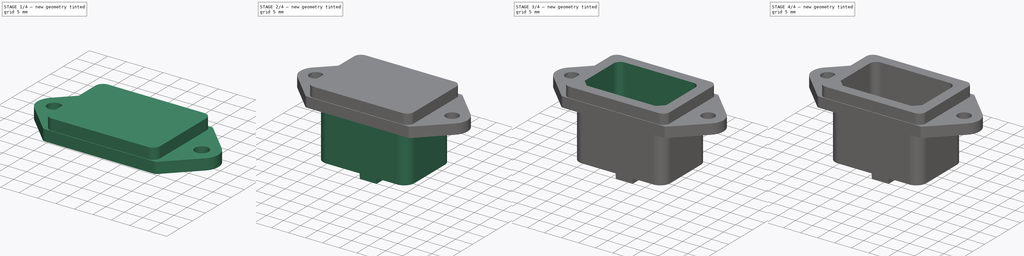
[diagram: build sequence overview — one tinted view per stage of 4, left to right]
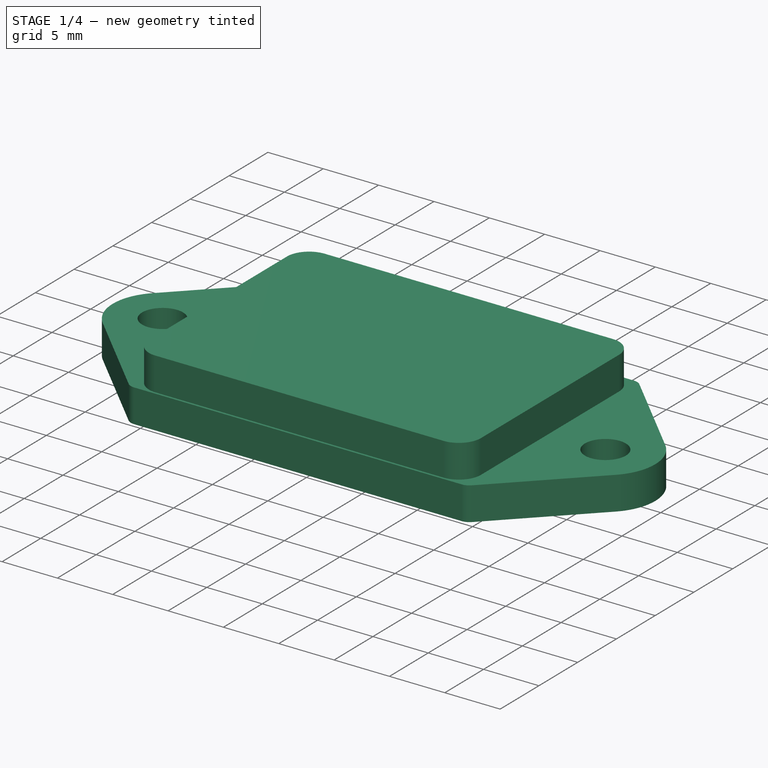
[diagram: stage 1 of 4 — iso view after this stage's code; geometry added in this stage tinted green]
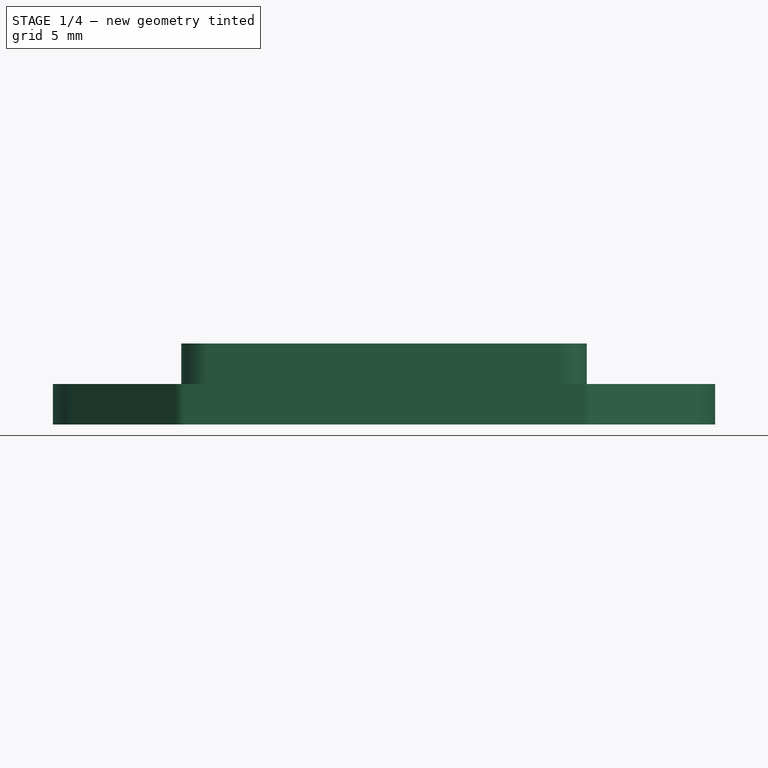
[diagram: stage 1 of 4 — front view after this stage's code; geometry added in this stage tinted green]
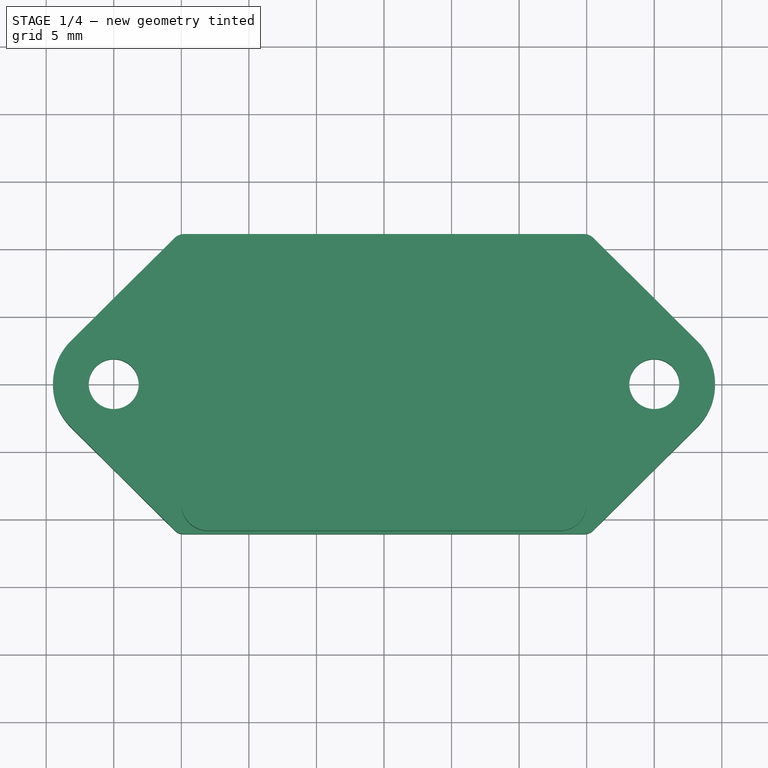
[diagram: stage 1 of 4 — top view after this stage's code; geometry added in this stage tinted green]
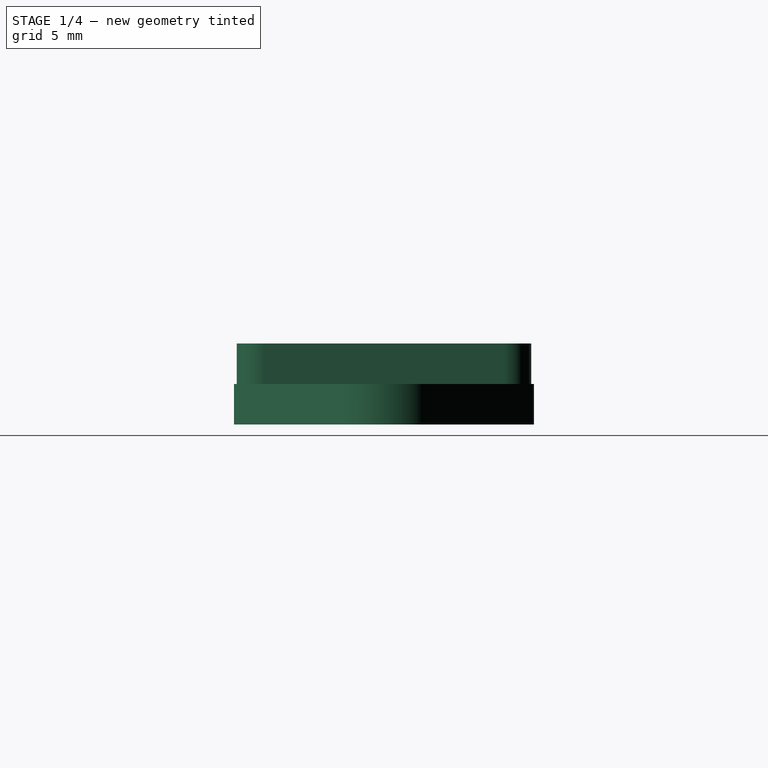
[diagram: stage 1 of 4 — right view after this stage's code; geometry added in this stage tinted green]
FCSTD DOCUMENT  (FreeCAD 0.15R4671 (Git))
Label: Cuerpo
License: All rights reserved
LicenseURL: http://en.wikipedia.org/wiki/All_rights_reserved
objects: Sketcher::SketchObject×7, PartDesign::Pad×5, Part::MultiFuse×4, PartDesign::Pocket×2, Part::MultiCommon×2, Part::Feature×1
note: 28 computed .brp shape members not serialized (recipe doc carries the construction recipe); baked Part::Feature solids carry a one-line shape summary decoded from their .brp

FEATURE [Sketcher::SketchObject] Sketch
  sketch-geometry (8):
    g0: LineSegment StartX=-13 StartY=10.9 StartZ=0 EndX=13 EndY=10.9 EndZ=0
    g1: LineSegment StartX=15 StartY=8.9 StartZ=0 EndX=15 EndY=-8.9 EndZ=0
    g2: LineSegment StartX=13 StartY=-10.9 StartZ=0 EndX=-13 EndY=-10.9 EndZ=0
    g3: LineSegment StartX=-15 StartY=-8.9 StartZ=0 EndX=-15 EndY=8.9 EndZ=0
    g4: ArcOfCircle CenterX=-13 CenterY=8.9 CenterZ=0 NormalX=0 NormalY=0 NormalZ=1 Radius=2 StartAngle=1.5708 EndAngle=3.14159
    g5: ArcOfCircle CenterX=13 CenterY=8.9 CenterZ=0 NormalX=0 NormalY=0 NormalZ=1 Radius=2 StartAngle=0 EndAngle=1.5708
    g6: ArcOfCircle CenterX=13 CenterY=-8.9 CenterZ=0 NormalX=0 NormalY=0 NormalZ=1 Radius=2 StartAngle=4.71239 EndAngle=6.28319
    g7: ArcOfCircle CenterX=-13 CenterY=-8.9 CenterZ=0 NormalX=0 NormalY=0 NormalZ=1 Radius=2 StartAngle=3.14159 EndAngle=4.71239
  constraints (20):
    c: Horizontal(g0)
    c: Horizontal(g2)
    c: Vertical(g1)
    c: Vertical(g3)
    c: Tangent(g3,g4) = 1.5708
    c: Tangent(g0,g4) = 1.5708
    c: Tangent(g0,g5) = 1.5708
    c: Tangent(g1,g5) = 1.5708
    c: Tangent(g1,g6) = 1.5708
    c: Tangent(g2,g6) = 1.5708
    c: Tangent(g2,g7) = 1.5708
    c: Tangent(g3,g7) = 1.5708
    c: Equal(g4,g5)
    c: Equal(g5,g6)
    c: Equal(g6,g7)
    c: Symmetric(g4,g5,g-2)
    c: Symmetric(g5,g6,g-1)
    c: DistanceX(g3,g1) = 30
    c: Radius(g7) = 2
    c: DistanceY(g0,g2) = -21.8
FEATURE [PartDesign::Pad] Pad
  Length = 3
  Length2 = 100
  Reversed = true
  Sketch = -> Sketch
  Type = 0
FEATURE [Sketcher::SketchObject] Sketch001
  Placement = pos=(0,0,-3) rot=(1,0,0;3.14159rad)
  Support = -> Pad [Face10]
  sketch-geometry (14):
    g0: LineSegment StartX=-23.1707 StartY=3.19326 StartZ=0 EndX=-15.5 EndY=10.8096 EndZ=0
    g1: LineSegment StartX=-14.7954 StartY=11.1 StartZ=0 EndX=14.7954 EndY=11.1 EndZ=0
    g2: LineSegment StartX=15.5 StartY=10.8096 StartZ=0 EndX=23.1707 EndY=3.19326 EndZ=0
    g3: LineSegment StartX=23.1707 StartY=-3.19326 StartZ=0 EndX=15.5 EndY=-10.8096 EndZ=0
    g4: LineSegment StartX=14.7954 StartY=-11.1 StartZ=0 EndX=-14.7954 EndY=-11.1 EndZ=0
    g5: LineSegment StartX=-15.5 StartY=-10.8096 StartZ=0 EndX=-23.1707 EndY=-3.19326 EndZ=0
    g6: ArcOfCircle CenterX=-20 CenterY=0 CenterZ=0 NormalX=0 NormalY=0 NormalZ=1 Radius=4.5 StartAngle=2.35264 EndAngle=3.93054
    g7: ArcOfCircle CenterX=20 CenterY=0 CenterZ=0 NormalX=0 NormalY=0 NormalZ=1 Radius=4.5 StartAngle=5.49423 EndAngle=7.07214
    g8: ArcOfCircle CenterX=-14.7954 CenterY=10.1 CenterZ=0 NormalX=0 NormalY=0 NormalZ=1 Radius=1 StartAngle=1.5708 EndAngle=2.35264
    g9: ArcOfCircle CenterX=14.7954 CenterY=10.1 CenterZ=0 NormalX=0 NormalY=0 NormalZ=1 Radius=1 StartAngle=0.788951 EndAngle=1.5708
    g10: ArcOfCircle CenterX=14.7954 CenterY=-10.1 CenterZ=0 NormalX=0 NormalY=0 NormalZ=1 Radius=1 StartAngle=4.71239 EndAngle=5.49423
    g11: ArcOfCircle CenterX=-14.7954 CenterY=-10.1 CenterZ=0 NormalX=0 NormalY=0 NormalZ=1 Radius=1 StartAngle=3.93054 EndAngle=4.71239
    g12: Circle CenterX=-20 CenterY=0 CenterZ=0 NormalX=0 NormalY=0 NormalZ=1 Radius=1.85
    g13: Circle CenterX=20 CenterY=0 CenterZ=0 NormalX=0 NormalY=0 NormalZ=1 Radius=1.85
  constraints (33):
    c: Horizontal(g1)
    c: Horizontal(g4)
    c: Tangent(g0,g6) = 1.5708
    c: Tangent(g5,g6) = 1.5708
    c: Tangent(g2,g7) = 1.5708
    c: Tangent(g3,g7) = 1.5708
    c: PointOnObject(g6,g-1)
    c: PointOnObject(g7,g-1)
    c: Symmetric(g6,g7,g-2)
    c: Equal(g6,g7)
    c: Radius(g6) = 4.5
    c: Tangent(g0,g8) = 1.5708
    c: Tangent(g1,g8) = 1.5708
    c: Tangent(g1,g9) = 1.5708
    c: Tangent(g2,g9) = 1.5708
    c: Tangent(g3,g10) = 1.5708
    c: Tangent(g4,g10) = 1.5708
    c: Tangent(g4,g11) = 1.5708
    c: Tangent(g5,g11) = 1.5708
    c: Equal(g8,g9)
    c: Equal(g9,g10)
    c: Equal(g10,g11)
    c: Symmetric(g8,g9,g-2)
    c: Symmetric(g9,g10,g-1)
    c: Radius(g8) = 1
    c: DistanceX(g0,g2) = 31
    c: DistanceY(g1,g4) = -22.2
    c: DistanceX(g6,g7) = 40
    c: Equal(g1,g4)
    c: Coincident(g12,g6)
    c: Coincident(g13,g7)
    c: Equal(g12,g13)
    c: Radius(g13) = 1.85
FEATURE [PartDesign::Pad] Pad001
  Length = 3
  Length2 = 100
  Sketch = -> Sketch001
  Type = 0
FEATURE [Part::MultiFuse] Fusion
  Shapes = -> [Pad001,Pad]
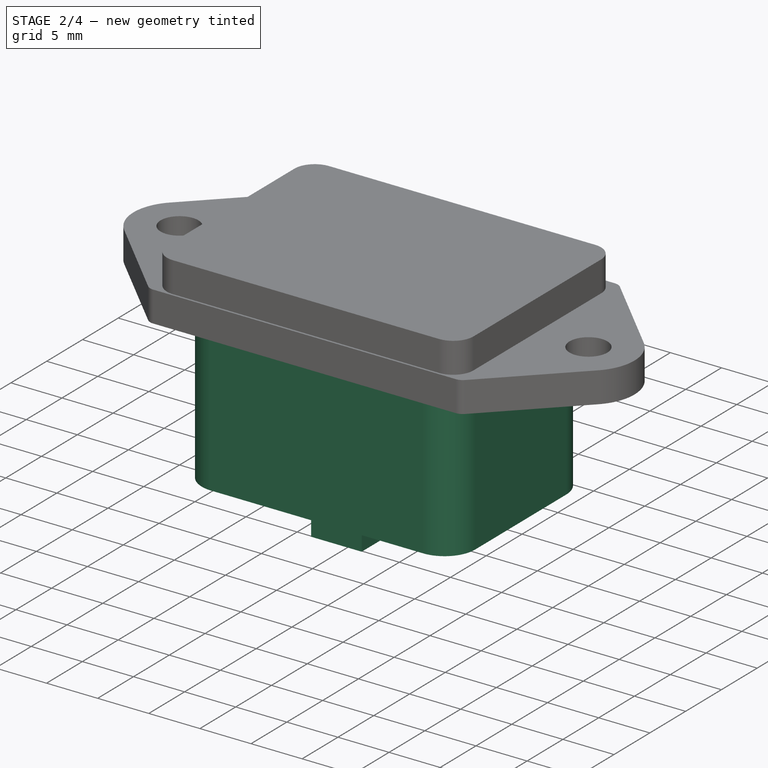
[diagram: stage 2 of 4 — iso view after this stage's code; geometry added in this stage tinted green]
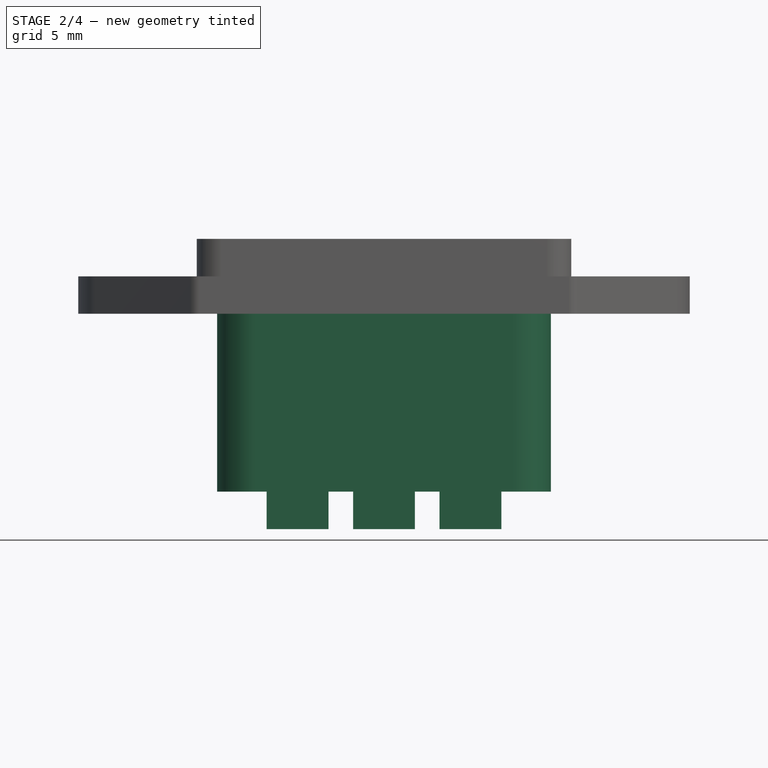
[diagram: stage 2 of 4 — front view after this stage's code; geometry added in this stage tinted green]
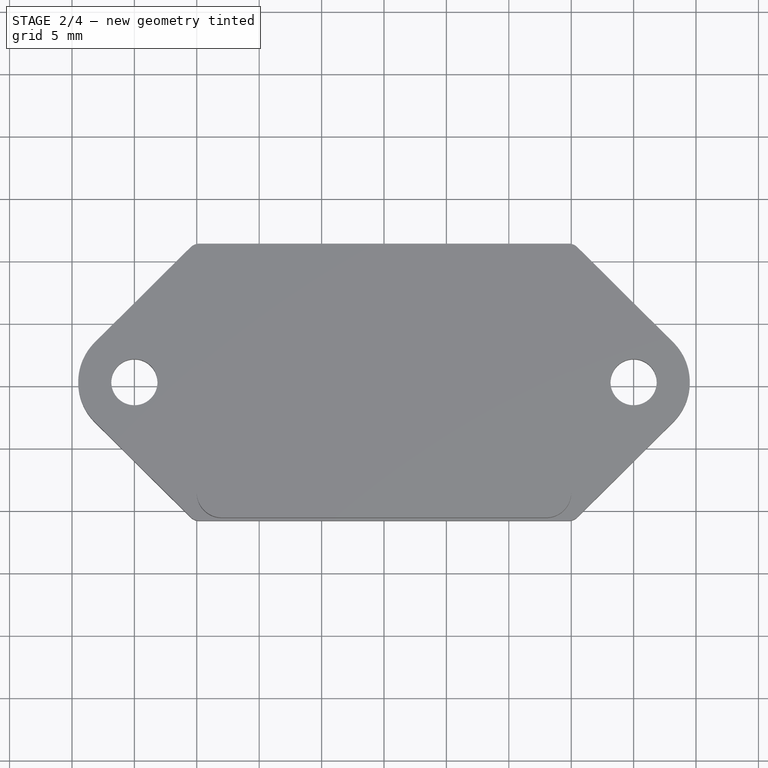
[diagram: stage 2 of 4 — top view after this stage's code; geometry added in this stage tinted green]
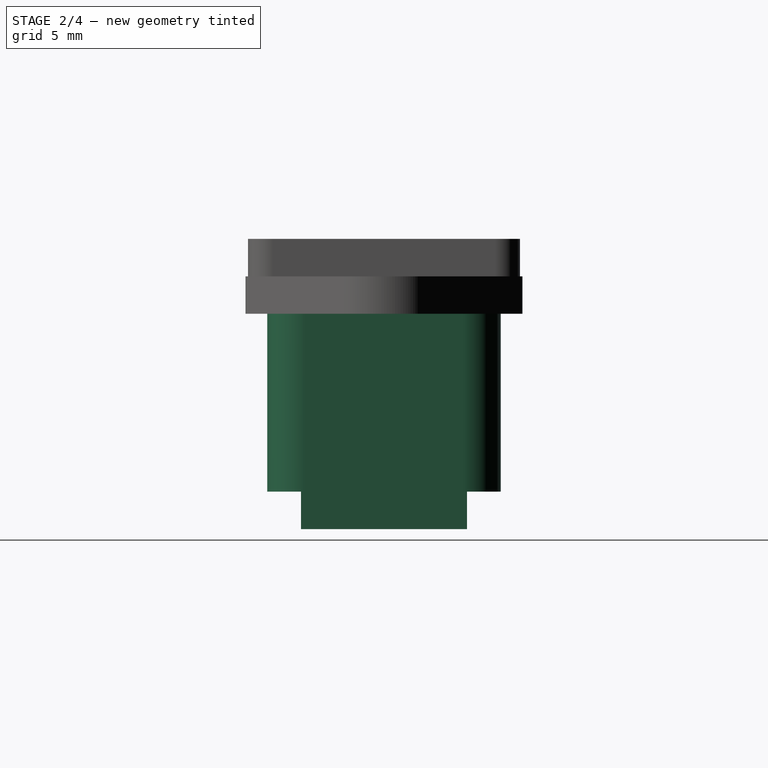
[diagram: stage 2 of 4 — right view after this stage's code; geometry added in this stage tinted green]
FEATURE [Sketcher::SketchObject] Sketch002
  Placement = pos=(0,0,-6) rot=(1,0,0;3.14159rad)
  Support = -> Fusion [Face5]
  sketch-geometry (8):
    g0: LineSegment StartX=-10.375 StartY=9.35 StartZ=0 EndX=10.375 EndY=9.35 EndZ=0
    g1: LineSegment StartX=13.375 StartY=6.35 StartZ=0 EndX=13.375 EndY=-6.35 EndZ=0
    g2: LineSegment StartX=10.375 StartY=-9.35 StartZ=0 EndX=-10.375 EndY=-9.35 EndZ=0
    g3: LineSegment StartX=-13.375 StartY=-6.35 StartZ=0 EndX=-13.375 EndY=6.35 EndZ=0
    g4: ArcOfCircle CenterX=-10.375 CenterY=6.35 CenterZ=0 NormalX=0 NormalY=0 NormalZ=1 Radius=3 StartAngle=1.5708 EndAngle=3.14159
    g5: ArcOfCircle CenterX=10.375 CenterY=6.35 CenterZ=0 NormalX=0 NormalY=0 NormalZ=1 Radius=3 StartAngle=0 EndAngle=1.5708
    g6: ArcOfCircle CenterX=10.375 CenterY=-6.35 CenterZ=0 NormalX=0 NormalY=0 NormalZ=1 Radius=3 StartAngle=4.71239 EndAngle=6.28319
    g7: ArcOfCircle CenterX=-10.375 CenterY=-6.35 CenterZ=0 NormalX=0 NormalY=0 NormalZ=1 Radius=3 StartAngle=3.14159 EndAngle=4.71239
  constraints (20):
    c: Horizontal(g0)
    c: Horizontal(g2)
    c: Vertical(g1)
    c: Vertical(g3)
    c: Tangent(g3,g4) = 1.5708
    c: Tangent(g0,g4) = 1.5708
    c: Tangent(g0,g5) = 1.5708
    c: Tangent(g1,g5) = 1.5708
    c: Tangent(g1,g6) = 1.5708
    c: Tangent(g2,g6) = 1.5708
    c: Tangent(g2,g7) = 1.5708
    c: Tangent(g3,g7) = 1.5708
    c: Radius(g4) = 3
    c: Equal(g4,g5)
    c: Equal(g5,g6)
    c: Equal(g6,g7)
    c: Symmetric(g4,g5,g-2)
    c: DistanceX(g3,g1) = 26.75
    c: Symmetric(g5,g6,g-1)
    c: DistanceY(g0,g2) = -18.7
FEATURE [PartDesign::Pad] Pad002
  Length = 14.25
  Length2 = 100
  Sketch = -> Sketch002
  Type = 0
FEATURE [Part::MultiFuse] Fusion001
  Shapes = -> [Pad002,Fusion]
FEATURE [Sketcher::SketchObject] Sketch003
  Placement = pos=(0,0,-20.25) rot=(1,0,0;3.14159rad)
  Support = -> Fusion001 [Face1]
  sketch-geometry (12):
    g0: LineSegment StartX=-2.475 StartY=6.65 StartZ=0 EndX=2.475 EndY=6.65 EndZ=0
    g1: LineSegment StartX=2.475 StartY=6.65 StartZ=0 EndX=2.475 EndY=0 EndZ=0
    g2: LineSegment StartX=2.475 StartY=0 StartZ=0 EndX=-2.475 EndY=0 EndZ=0
    g3: LineSegment StartX=-2.475 StartY=0 StartZ=0 EndX=-2.475 EndY=6.65 EndZ=0
    g4: LineSegment StartX=-9.4 StartY=0 StartZ=0 EndX=-4.45 EndY=0 EndZ=0
    g5: LineSegment StartX=-4.45 StartY=0 StartZ=0 EndX=-4.45 EndY=-6.65 EndZ=0
    g6: LineSegment StartX=-4.45 StartY=-6.65 StartZ=0 EndX=-9.4 EndY=-6.65 EndZ=0
    g7: LineSegment StartX=-9.4 StartY=-6.65 StartZ=0 EndX=-9.4 EndY=0 EndZ=0
    g8: LineSegment StartX=4.45 StartY=0 StartZ=0 EndX=9.4 EndY=0 EndZ=0
    g9: LineSegment StartX=9.4 StartY=0 StartZ=0 EndX=9.4 EndY=-6.65 EndZ=0
    g10: LineSegment StartX=9.4 StartY=-6.65 StartZ=0 EndX=4.45 EndY=-6.65 EndZ=0
    g11: LineSegment StartX=4.45 StartY=-6.65 StartZ=0 EndX=4.45 EndY=0 EndZ=0
  constraints (36):
    c: Coincident(g0,g1)
    c: Coincident(g1,g2)
    c: Coincident(g2,g3)
    c: Coincident(g3,g0)
    c: Horizontal(g0)
    c: Horizontal(g2)
    c: Vertical(g1)
    c: Vertical(g3)
    c: Coincident(g4,g5)
    c: Coincident(g5,g6)
    c: Coincident(g6,g7)
    c: Coincident(g7,g4)
    c: Horizontal(g4)
    c: Horizontal(g6)
    c: Vertical(g5)
    c: Vertical(g7)
    c: PointOnObject(g4,g-1)
    c: Coincident(g8,g9)
    c: Coincident(g9,g10)
    c: Coincident(g10,g11)
    c: Coincident(g11,g8)
    c: Horizontal(g8)
    c: Horizontal(g10)
    c: Vertical(g9)
    c: Vertical(g11)
    c: PointOnObject(g8,g-1)
    c: Symmetric(g0,g0,g-2)
    c: Equal(g0,g4)
    c: Equal(g4,g8)
    c: Equal(g1,g5)
    c: Equal(g5,g9)
    c: DistanceX(g0) = 4.95
    c: PointOnObject(g2,g-1)
    c: DistanceY(g1) = -6.65
    c: Symmetric(g5,g10,g-2)
    c: DistanceX(g9,g6) = -18.8
FEATURE [PartDesign::Pad] Pad003
  Length = 3
  Length2 = 100
  Sketch = -> Sketch003
  Type = 0
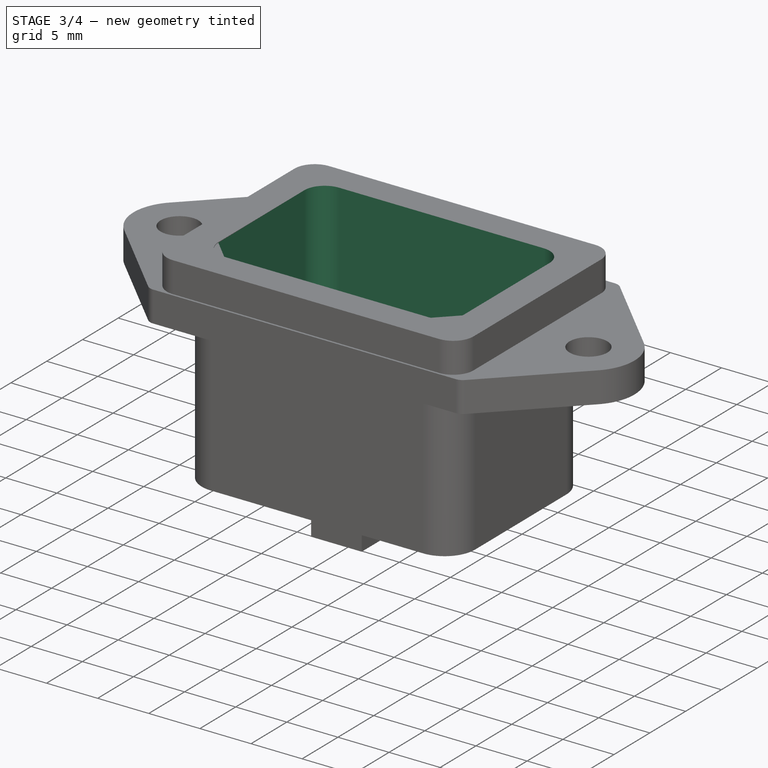
[diagram: stage 3 of 4 — iso view after this stage's code; geometry added in this stage tinted green]
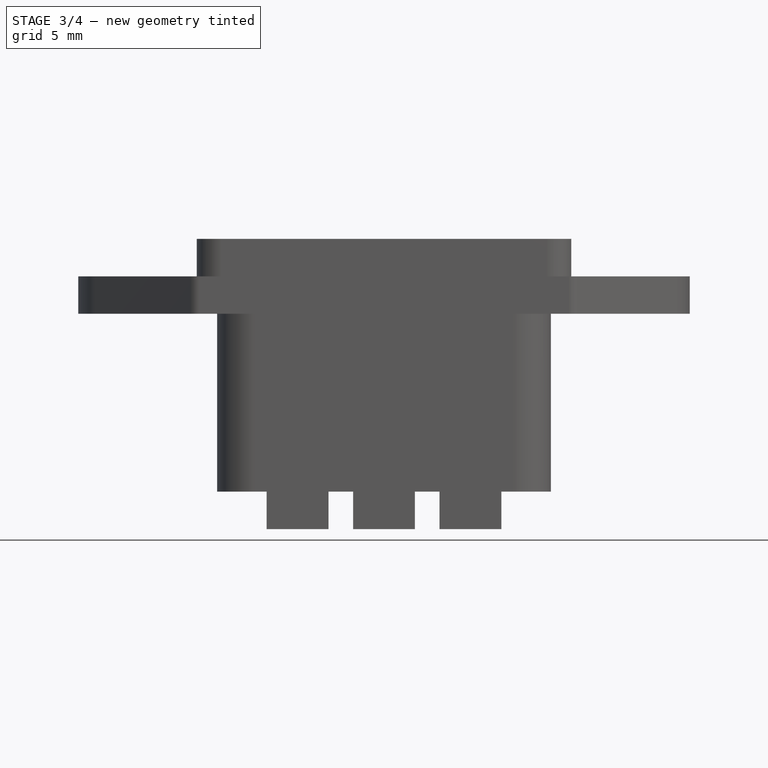
[diagram: stage 3 of 4 — front view after this stage's code; geometry added in this stage tinted green]
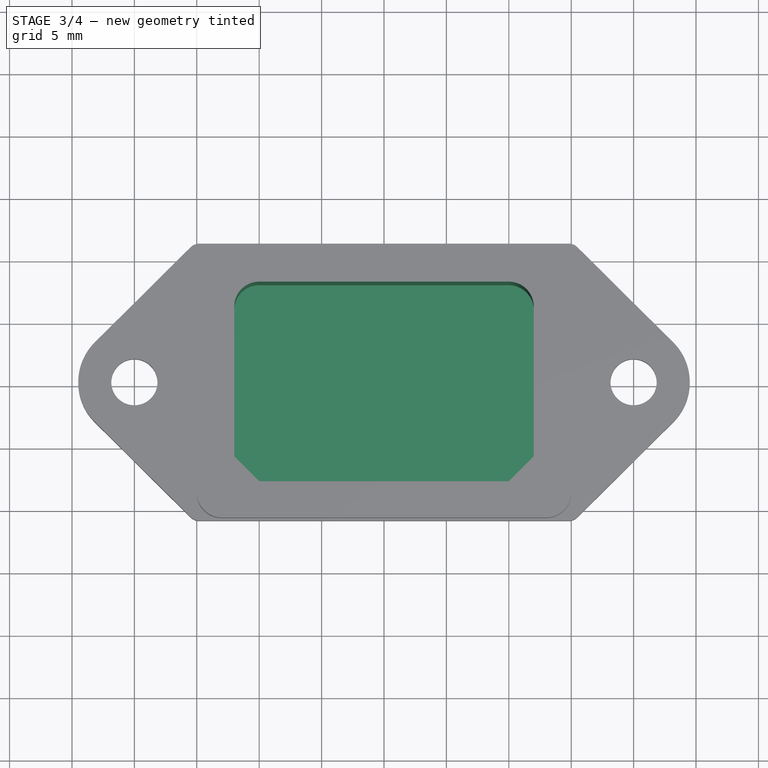
[diagram: stage 3 of 4 — top view after this stage's code; geometry added in this stage tinted green]
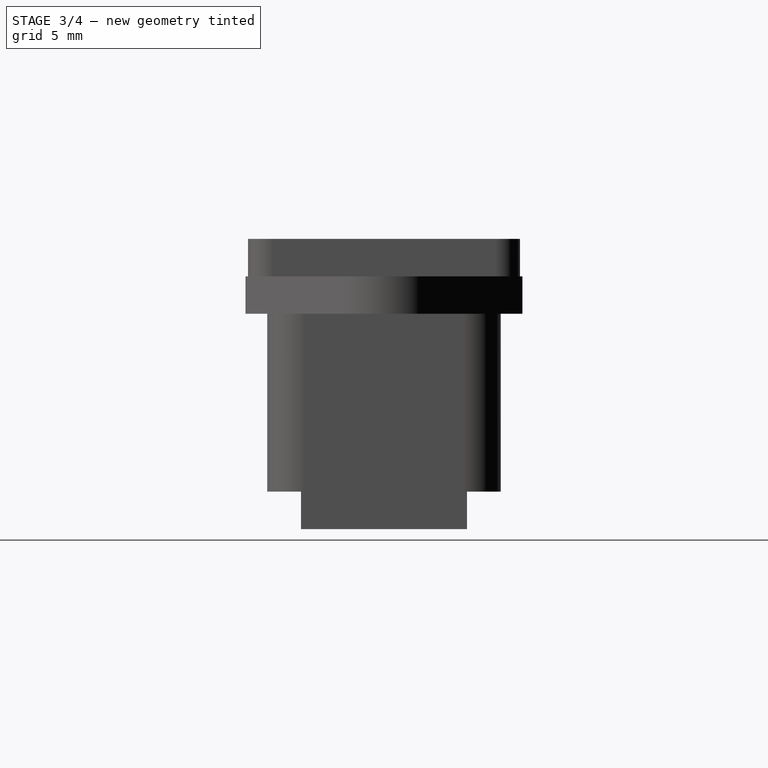
[diagram: stage 3 of 4 — right view after this stage's code; geometry added in this stage tinted green]
FEATURE [Part::MultiFuse] Fusion002
  Shapes = -> [Pad003,Fusion001]
FEATURE [Sketcher::SketchObject] Sketch004
  Support = -> Fusion002 [Face49]
  sketch-geometry (8):
    g0: LineSegment StartX=-10 StartY=8 StartZ=0 EndX=10 EndY=8 EndZ=0
    g1: LineSegment StartX=12 StartY=6 StartZ=0 EndX=12 EndY=-6 EndZ=0
    g2: LineSegment StartX=10 StartY=-8 StartZ=0 EndX=-10 EndY=-8 EndZ=0
    g3: LineSegment StartX=-12 StartY=-6 StartZ=0 EndX=-12 EndY=6 EndZ=0
    g4: ArcOfCircle CenterX=-10 CenterY=6 CenterZ=0 NormalX=0 NormalY=0 NormalZ=1 Radius=2 StartAngle=1.5708 EndAngle=3.14159
    g5: ArcOfCircle CenterX=10 CenterY=6 CenterZ=0 NormalX=0 NormalY=0 NormalZ=1 Radius=2 StartAngle=0 EndAngle=1.5708
    g6: ArcOfCircle CenterX=10 CenterY=-6 CenterZ=0 NormalX=0 NormalY=0 NormalZ=1 Radius=2 StartAngle=4.71239 EndAngle=6.28319
    g7: ArcOfCircle CenterX=-10 CenterY=-6 CenterZ=0 NormalX=0 NormalY=0 NormalZ=1 Radius=2 StartAngle=3.14159 EndAngle=4.71239
  constraints (20):
    c: Horizontal(g0)
    c: Horizontal(g2)
    c: Vertical(g1)
    c: Vertical(g3)
    c: Tangent(g3,g4) = 1.5708
    c: Tangent(g0,g4) = 1.5708
    c: Tangent(g0,g5) = 1.5708
    c: Tangent(g1,g5) = 1.5708
    c: Tangent(g1,g6) = 1.5708
    c: Tangent(g2,g6) = 1.5708
    c: Tangent(g2,g7) = 1.5708
    c: Tangent(g3,g7) = 1.5708
    c: Equal(g4,g5)
    c: Equal(g5,g6)
    c: Equal(g6,g7)
    c: Symmetric(g4,g5,g-2)
    c: Symmetric(g5,g6,g-1)
    c: Radius(g7) = 2
    c: DistanceX(g3,g1) = 24
    c: DistanceY(g0,g2) = -16
FEATURE [PartDesign::Pocket] Pocket
  Length = 16.45
  Sketch = -> Sketch004
  Type = 0
FEATURE [Part::MultiCommon] Common
  Shapes = -> [Pocket,Fusion002]
FEATURE [Sketcher::SketchObject] Sketch005
  ExternalGeometry = -> [Common]
  Placement = pos=(0,0,-16.45) rot=(0,0,1;0rad)
  Support = -> Common [Face58]
  sketch-geometry (4):
    g0: ArcOfCircle CenterX=-10 CenterY=-6 CenterZ=0 NormalX=0 NormalY=0 NormalZ=1 Radius=2 StartAngle=3.14159 EndAngle=4.71239
    g1: LineSegment StartX=-10 StartY=-8 StartZ=0 EndX=-12 EndY=-6 EndZ=0
    g2: ArcOfCircle CenterX=10 CenterY=-6 CenterZ=0 NormalX=0 NormalY=0 NormalZ=1 Radius=2 StartAngle=4.71239 EndAngle=6.28319
    g3: LineSegment StartX=10 StartY=-8 StartZ=0 EndX=12 EndY=-6 EndZ=0
  constraints (10):
    c: Coincident(g0,g-3)
    c: Coincident(g0,g-3)
    c: Coincident(g0,g-3)
    c: Coincident(g1,g0)
    c: Coincident(g1,g0)
    c: Coincident(g2,g-4)
    c: Coincident(g2,g-4)
    c: Coincident(g2,g-4)
    c: Coincident(g3,g2)
    c: Coincident(g3,g2)
FEATURE [PartDesign::Pad] Pad004
  Length = 16.4
  Length2 = 100
  Sketch = -> Sketch005
  Type = 0
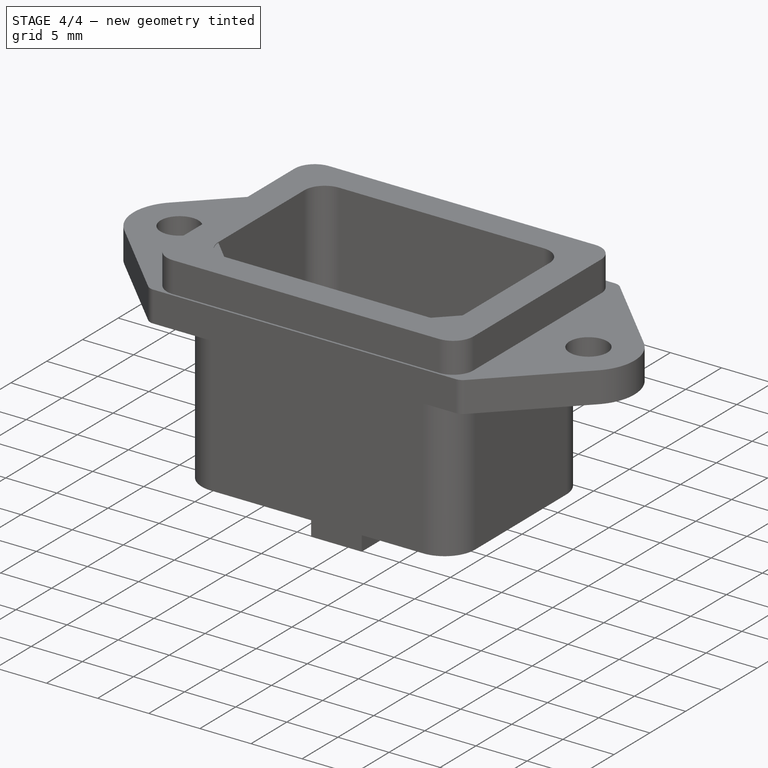
[diagram: stage 4 of 4 — iso view after this stage's code; geometry added in this stage tinted green]
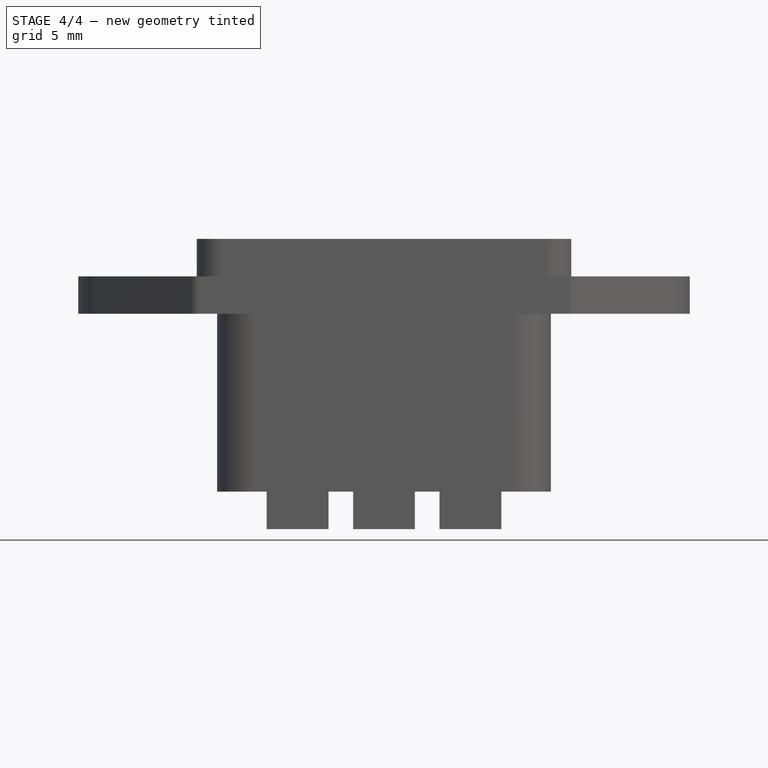
[diagram: stage 4 of 4 — front view after this stage's code; geometry added in this stage tinted green]
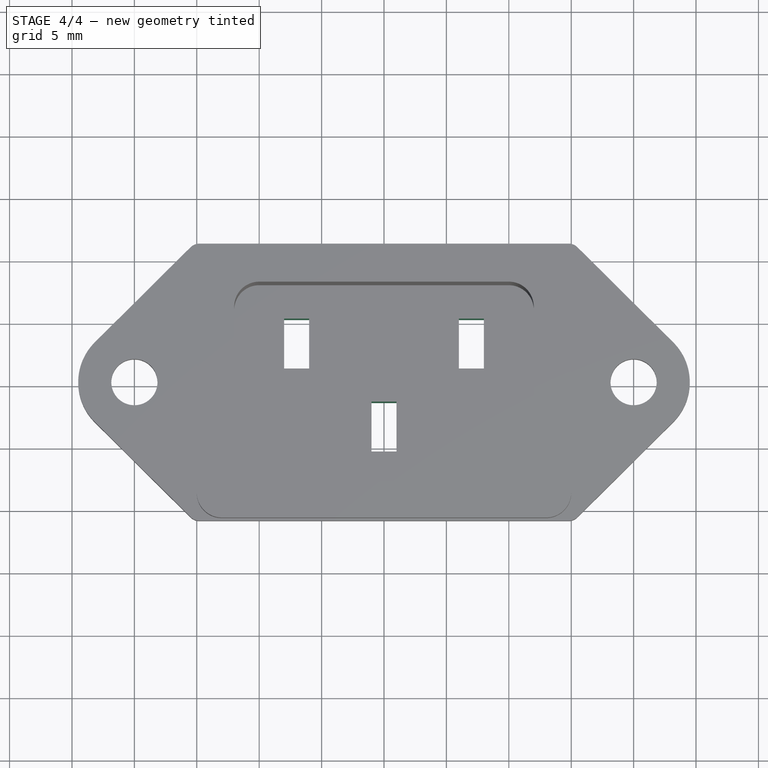
[diagram: stage 4 of 4 — top view after this stage's code; geometry added in this stage tinted green]
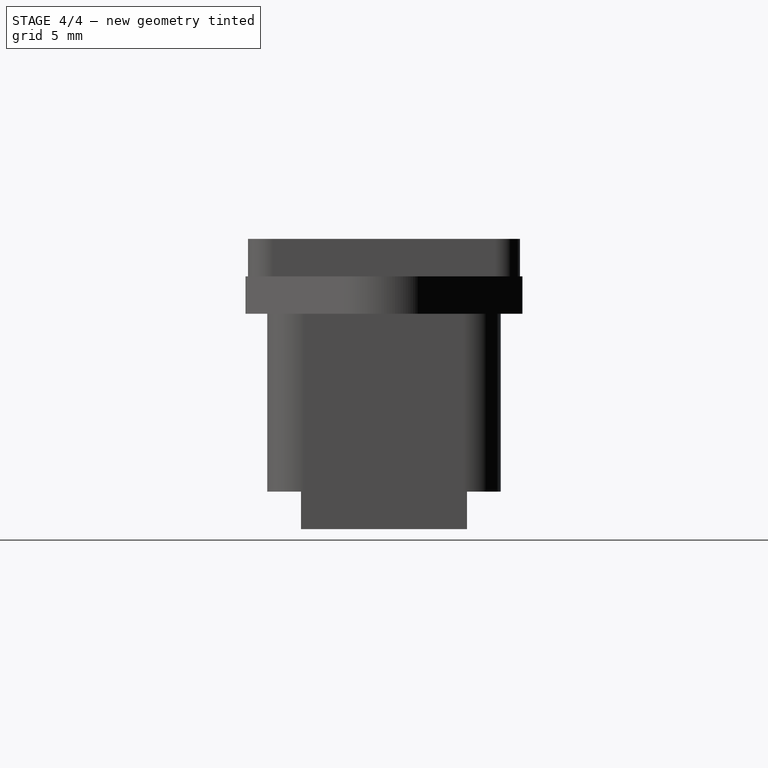
[diagram: stage 4 of 4 — right view after this stage's code; geometry added in this stage tinted green]
FEATURE [Part::MultiFuse] Fusion003
  Shapes = -> [Pad004,Common]
FEATURE [Sketcher::SketchObject] Sketch006
  Placement = pos=(0,0,-23.25) rot=(1,0,0;3.14159rad)
  Support = -> Fusion003 [Face1]
  sketch-geometry (12):
    g0: LineSegment StartX=-1 StartY=5.325 StartZ=0 EndX=1 EndY=5.325 EndZ=0
    g1: LineSegment StartX=1 StartY=5.325 StartZ=0 EndX=1 EndY=1.325 EndZ=0
    g2: LineSegment StartX=1 StartY=1.325 StartZ=0 EndX=-1 EndY=1.325 EndZ=0
    g3: LineSegment StartX=-1 StartY=1.325 StartZ=0 EndX=-1 EndY=5.325 EndZ=0
    g4: LineSegment StartX=-8 StartY=-1.325 StartZ=0 EndX=-6 EndY=-1.325 EndZ=0
    g5: LineSegment StartX=-6 StartY=-1.325 StartZ=0 EndX=-6 EndY=-5.325 EndZ=0
    g6: LineSegment StartX=-6 StartY=-5.325 StartZ=0 EndX=-8 EndY=-5.325 EndZ=0
    g7: LineSegment StartX=-8 StartY=-5.325 StartZ=0 EndX=-8 EndY=-1.325 EndZ=0
    g8: LineSegment StartX=6 StartY=-1.325 StartZ=0 EndX=8 EndY=-1.325 EndZ=0
    g9: LineSegment StartX=8 StartY=-1.325 StartZ=0 EndX=8 EndY=-5.325 EndZ=0
    g10: LineSegment StartX=8 StartY=-5.325 StartZ=0 EndX=6 EndY=-5.325 EndZ=0
    g11: LineSegment StartX=6 StartY=-5.325 StartZ=0 EndX=6 EndY=-1.325 EndZ=0
  constraints (35):
    c: Coincident(g0,g1)
    c: Coincident(g1,g2)
    c: Coincident(g2,g3)
    c: Coincident(g3,g0)
    c: Horizontal(g0)
    c: Horizontal(g2)
    c: Vertical(g1)
    c: Vertical(g3)
    c: Coincident(g4,g5)
    c: Coincident(g5,g6)
    c: Coincident(g6,g7)
    c: Coincident(g7,g4)
    c: Horizontal(g4)
    c: Horizontal(g6)
    c: Vertical(g5)
    c: Vertical(g7)
    c: Coincident(g8,g9)
    c: Coincident(g9,g10)
    c: Coincident(g10,g11)
    c: Coincident(g11,g8)
    c: Horizontal(g8)
    c: Horizontal(g10)
    c: Vertical(g9)
    c: Vertical(g11)
    c: Symmetric(g0,g0,g-2)
    c: Equal(g0,g4)
    c: Equal(g4,g8)
    c: Equal(g1,g5)
    c: Equal(g5,g9)
    c: DistanceX(g0) = 2
    c: Symmetric(g5,g10,g-2)
    c: DistanceY(g1) = -4
    c: DistanceX(g9,g6) = -16
    c: DistanceY(g-1,g1) = 1.325
    c: DistanceY(g-1,g8) = -1.325
FEATURE [PartDesign::Pocket] Pocket001
  Length = 5
  Sketch = -> Sketch006
  Type = 1
FEATURE [Part::MultiCommon] Common001
  Shapes = -> [Pocket001,Fusion003]
FEATURE [Part::Feature] Common001001  label="Body"
  shape: bbox 49 x 22.2 x 23.25 mm, 74 faces (baked)
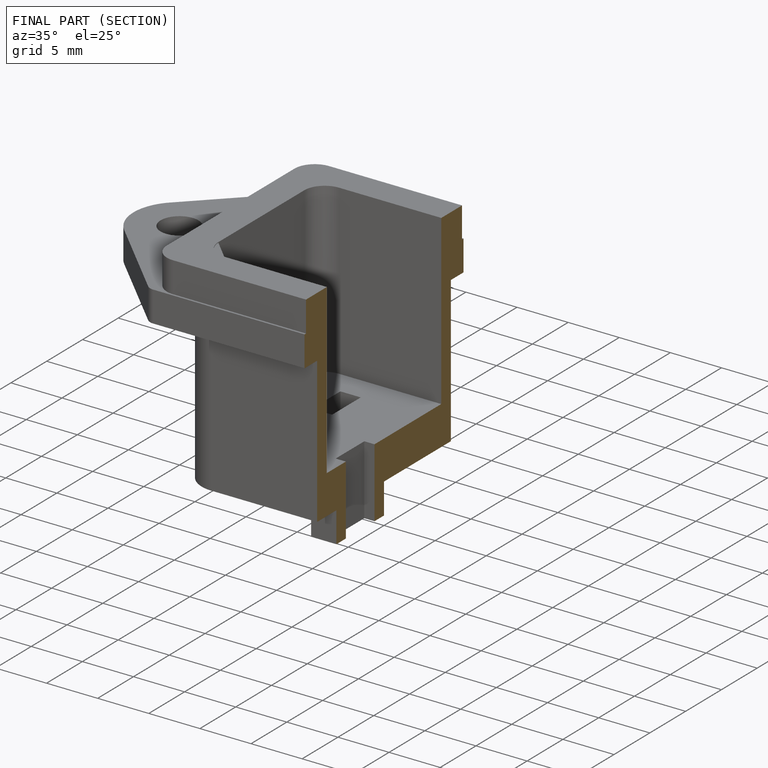
[diagram: finished part — half-section view (interior)]
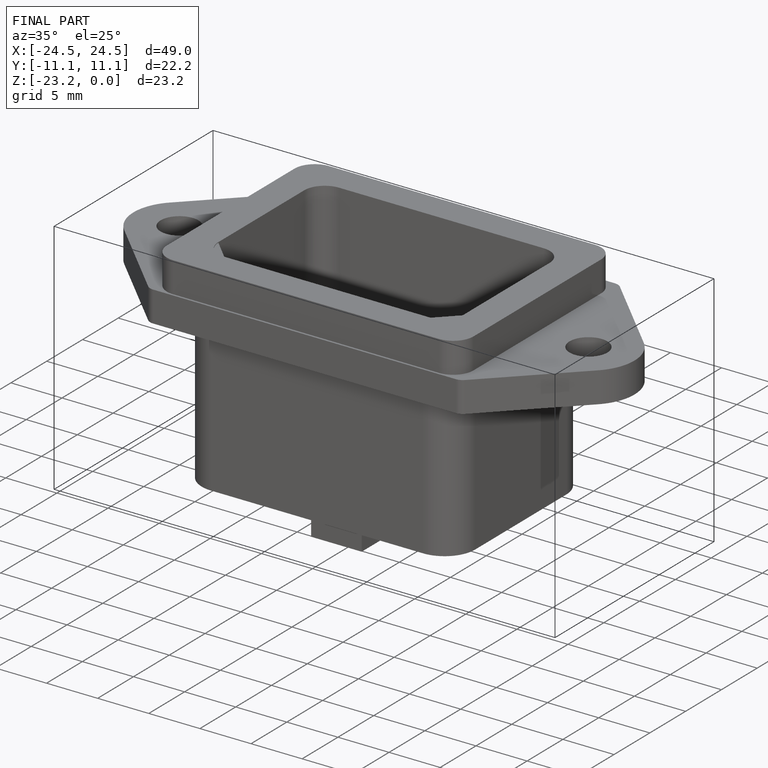
[diagram: finished part — iso view with bounding-box wireframe]
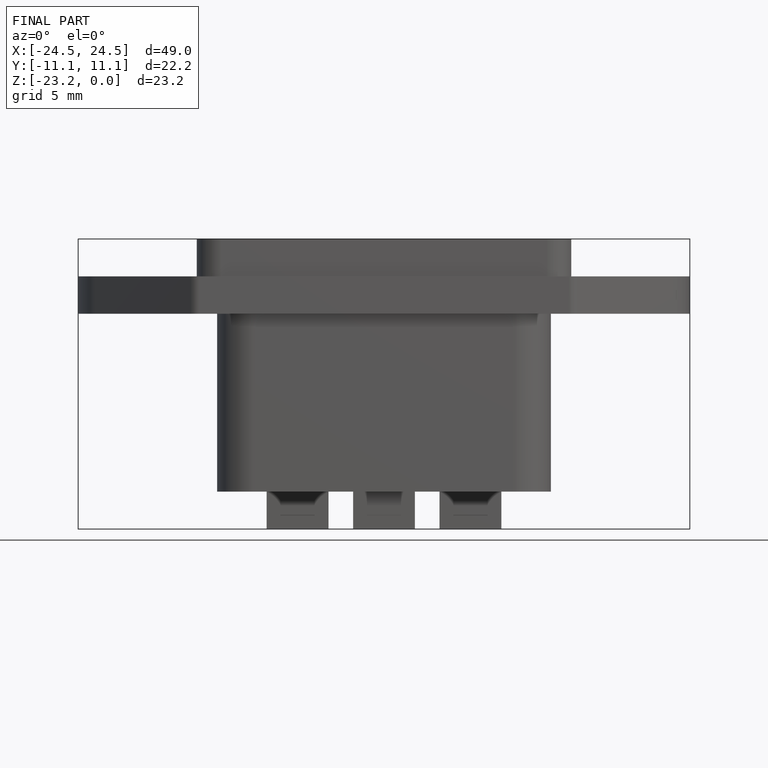
[diagram: finished part — front view with bounding-box wireframe]
